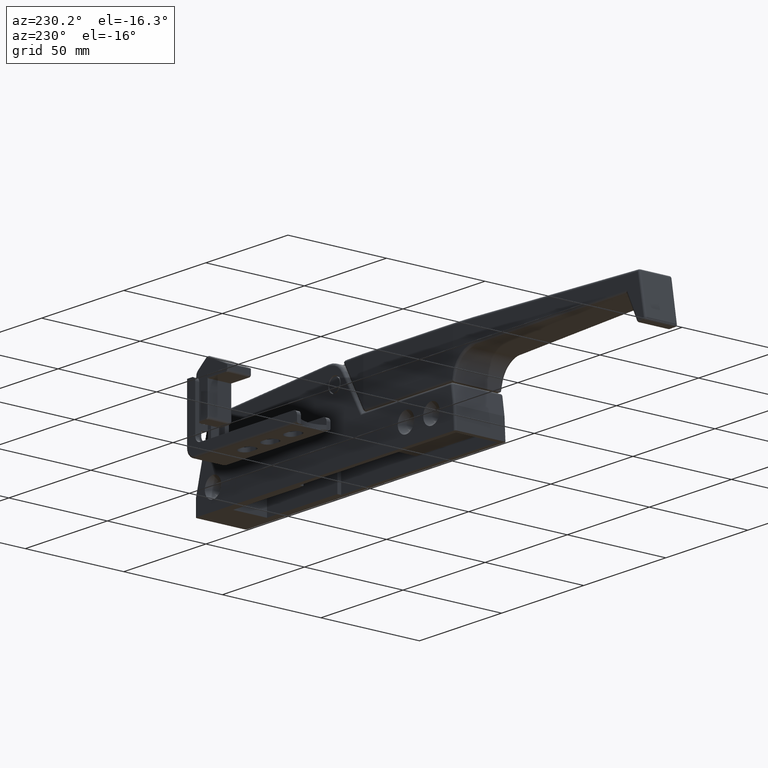
[diagram: clean part render]
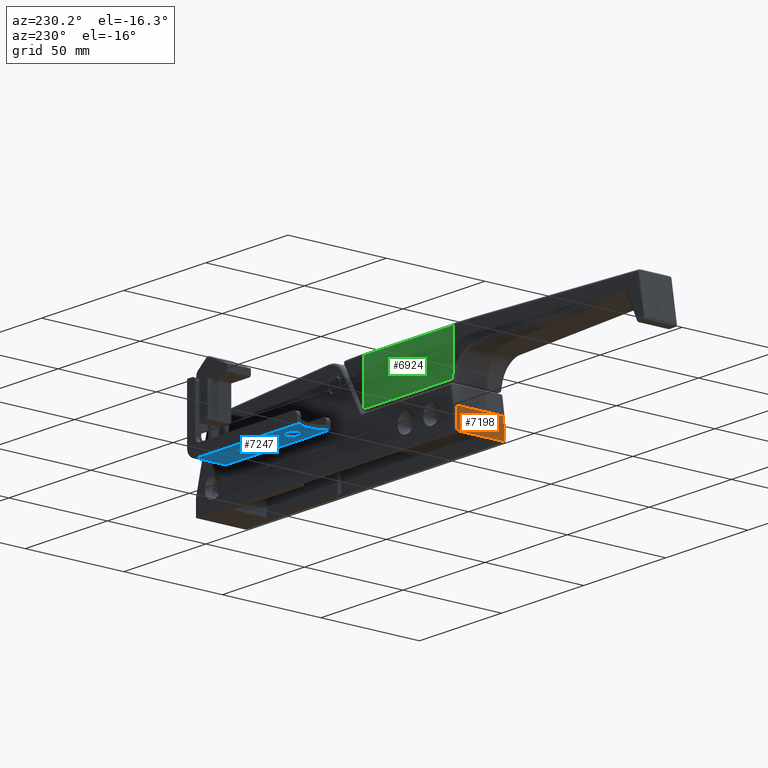
[diagram: same view with three faces highlighted in distinct colors, each labeled with its STEP entity id]
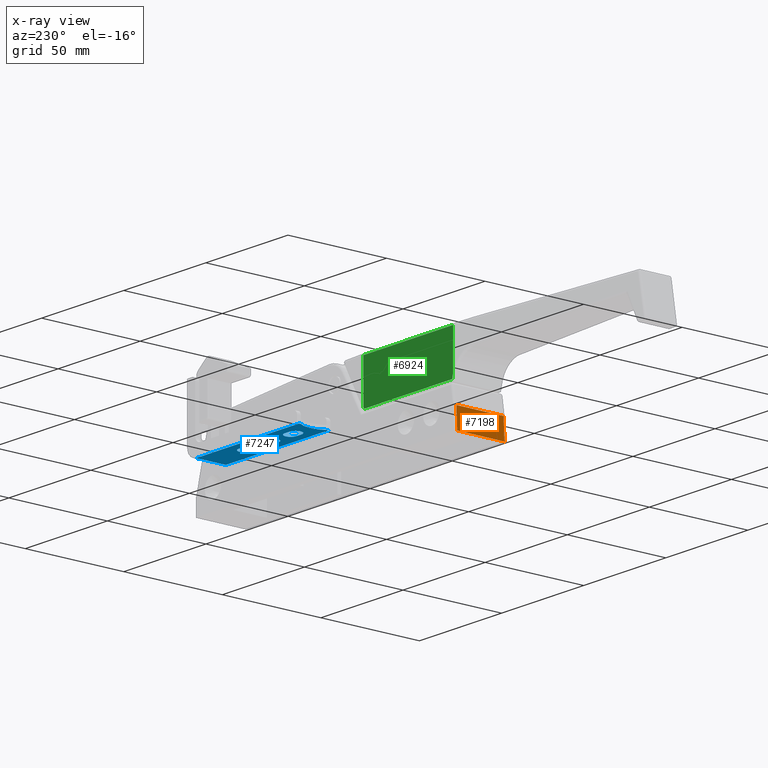
[diagram: x-ray of the same camera — body ghosted, the three highlighted faces saturated]
A machine part, auxiliary view with three faces highlighted in distinct colors.
The next image is the same camera in x-ray (body ghosted, the three faces saturated) — at least one of them is partly hidden behind the body in this view.
Their STEP definitions:

[orange] entity #7198 — the highlighted planar face has unit normal (-0.9986, -0, 0.0523).
#382=PLANE('',#7876);
#780=FACE_OUTER_BOUND('',#1246,.T.);
#1246=EDGE_LOOP('',(#6264,#6265,#6266,#6267));
#2181=LINE('',#12447,#2820);
#2182=LINE('',#12452,#2821);
#2239=LINE('',#12605,#2878);
#2240=LINE('',#12608,#2879);
#2820=VECTOR('',#9574,10.5144096329796);
#2821=VECTOR('',#9579,24.);
#2878=VECTOR('',#9744,24.);
#2879=VECTOR('',#9749,10.5144096329796);
#3476=VERTEX_POINT('',#12441);
#3477=VERTEX_POINT('',#12445);
#3479=VERTEX_POINT('',#12451);
#3521=VERTEX_POINT('',#12600);
#4387=EDGE_CURVE('',#3477,#3476,#2181,.T.);
#4389=EDGE_CURVE('',#3479,#3477,#2182,.T.);
#4466=EDGE_CURVE('',#3521,#3476,#2239,.T.);
#4467=EDGE_CURVE('',#3521,#3479,#2240,.T.);
#6264=ORIENTED_EDGE('',*,*,#4467,.T.);
#6265=ORIENTED_EDGE('',*,*,#4389,.T.);
#6266=ORIENTED_EDGE('',*,*,#4387,.T.);
#6267=ORIENTED_EDGE('',*,*,#4466,.F.);
#7198=ADVANCED_FACE('',(#780),#382,.T.);
#7876=AXIS2_PLACEMENT_3D('',#12607,#9747,#9748);
#9574=DIRECTION('',(0.998629534754574,-0.0523359562429386,0.));
#9579=DIRECTION('',(0.,0.,1.));
#9744=DIRECTION('',(0.,0.,1.));
#9747=DIRECTION('center_axis',(0.0523359562429386,0.998629534754574,0.));
#9748=DIRECTION('ref_axis',(-0.998629534754575,0.0523359562429278,0.));
#9749=DIRECTION('',(-0.998629534754574,0.0523359562429387,0.));
#12441=CARTESIAN_POINT('',(10.5,128.0497183175,12.));
#12445=CARTESIAN_POINT('',(5.720227027565E-14,128.6,12.));
#12447=CARTESIAN_POINT('',(5.919742169307E-14,128.6,12.));
#12451=CARTESIAN_POINT('',(5.720227027565E-14,128.6,-12.));
#12452=CARTESIAN_POINT('',(5.209199433547E-14,128.6,-12.));
#12600=CARTESIAN_POINT('',(10.5,128.0497183175,-12.));
#12605=CARTESIAN_POINT('',(10.5,128.0497183175,-12.));
#12607=CARTESIAN_POINT('Origin',(10.5,128.0497183175,-40.5));
#12608=CARTESIAN_POINT('',(10.5,128.0497183175,-12.));

[blue] entity #7247 — the highlighted planar face has unit normal (0, 0, -1).
#182=FACE_BOUND('',#1310,.T.);
#183=FACE_BOUND('',#1311,.T.);
#184=FACE_BOUND('',#1312,.T.);
#402=PLANE('',#7975);
#829=FACE_OUTER_BOUND('',#1309,.T.);
#1309=EDGE_LOOP('',(#6495,#6496,#6497,#6498,#6499,#6500));
#1310=EDGE_LOOP('',(#6501,#6502,#6503,#6504));
#1311=EDGE_LOOP('',(#6505,#6506,#6507,#6508));
#1312=EDGE_LOOP('',(#6509,#6510,#6511,#6512));
#1667=CIRCLE('',#7966,11.5625);
#1675=CIRCLE('',#7976,3.);
#1676=CIRCLE('',#7977,3.);
#1677=CIRCLE('',#7978,3.);
#1678=CIRCLE('',#7979,3.);
#1679=CIRCLE('',#7980,3.);
#1680=CIRCLE('',#7981,3.);
#2253=LINE('',#12683,#2892);
#2259=LINE('',#12694,#2898);
#2266=LINE('',#12727,#2905);
#2271=LINE('',#12744,#2910);
#2290=LINE('',#12789,#2929);
#2312=LINE('',#12863,#2951);
#2313=LINE('',#12866,#2952);
#2314=LINE('',#12871,#2953);
#2315=LINE('',#12874,#2954);
#2316=LINE('',#12879,#2955);
#2317=LINE('',#12882,#2956);
#2892=VECTOR('',#9846,62.5);
#2898=VECTOR('',#9854,1.);
#2905=VECTOR('',#9887,62.5);
#2910=VECTOR('',#9902,0.999999999999999);
#2929=VECTOR('',#9947,15.);
#2951=VECTOR('',#10021,2.99999999999995);
#2952=VECTOR('',#10024,2.99999999999995);
#2953=VECTOR('',#10027,2.99999999999995);
#2954=VECTOR('',#10030,2.99999999999995);
#2955=VECTOR('',#10033,2.99999999999995);
#2956=VECTOR('',#10036,2.99999999999995);
#3539=VERTEX_POINT('',#12675);
#3541=VERTEX_POINT('',#12681);
#3545=VERTEX_POINT('',#12692);
#3555=VERTEX_POINT('',#12717);
#3557=VERTEX_POINT('',#12723);
#3565=VERTEX_POINT('',#12743);
#3602=VERTEX_POINT('',#12859);
#3603=VERTEX_POINT('',#12860);
#3604=VERTEX_POINT('',#12862);
#3605=VERTEX_POINT('',#12864);
#3606=VERTEX_POINT('',#12867);
#3607=VERTEX_POINT('',#12868);
#3608=VERTEX_POINT('',#12870);
#3609=VERTEX_POINT('',#12872);
#3610=VERTEX_POINT('',#12875);
#3611=VERTEX_POINT('',#12876);
#3612=VERTEX_POINT('',#12878);
#3613=VERTEX_POINT('',#12880);
#4499=EDGE_CURVE('',#3541,#3539,#2253,.T.);
#4505=EDGE_CURVE('',#3541,#3545,#2259,.T.);
#4521=EDGE_CURVE('',#3555,#3557,#2266,.T.);
#4529=EDGE_CURVE('',#3565,#3557,#2271,.T.);
#4553=EDGE_CURVE('',#3539,#3555,#2290,.T.);
#4572=EDGE_CURVE('',#3545,#3565,#1667,.T.);
#4588=EDGE_CURVE('',#3602,#3603,#1675,.T.);
#4589=EDGE_CURVE('',#3603,#3604,#2312,.T.);
#4590=EDGE_CURVE('',#3604,#3605,#1676,.T.);
#4591=EDGE_CURVE('',#3605,#3602,#2313,.T.);
#4592=EDGE_CURVE('',#3606,#3607,#1677,.T.);
#4593=EDGE_CURVE('',#3607,#3608,#2314,.T.);
#4594=EDGE_CURVE('',#3608,#3609,#1678,.T.);
#4595=EDGE_CURVE('',#3609,#3606,#2315,.T.);
#4596=EDGE_CURVE('',#3610,#3611,#1679,.T.);
#4597=EDGE_CURVE('',#3611,#3612,#2316,.T.);
#4598=EDGE_CURVE('',#3612,#3613,#1680,.T.);
#4599=EDGE_CURVE('',#3613,#3610,#2317,.T.);
#6495=ORIENTED_EDGE('',*,*,#4499,.F.);
#6496=ORIENTED_EDGE('',*,*,#4505,.T.);
#6497=ORIENTED_EDGE('',*,*,#4572,.T.);
#6498=ORIENTED_EDGE('',*,*,#4529,.T.);
#6499=ORIENTED_EDGE('',*,*,#4521,.F.);
#6500=ORIENTED_EDGE('',*,*,#4553,.F.);
#6501=ORIENTED_EDGE('',*,*,#4588,.T.);
#6502=ORIENTED_EDGE('',*,*,#4589,.T.);
#6503=ORIENTED_EDGE('',*,*,#4590,.T.);
#6504=ORIENTED_EDGE('',*,*,#4591,.T.);
#6505=ORIENTED_EDGE('',*,*,#4592,.T.);
#6506=ORIENTED_EDGE('',*,*,#4593,.T.);
#6507=ORIENTED_EDGE('',*,*,#4594,.T.);
#6508=ORIENTED_EDGE('',*,*,#4595,.T.);
#6509=ORIENTED_EDGE('',*,*,#4596,.T.);
#6510=ORIENTED_EDGE('',*,*,#4597,.T.);
#6511=ORIENTED_EDGE('',*,*,#4598,.T.);
#6512=ORIENTED_EDGE('',*,*,#4599,.T.);
#7247=ADVANCED_FACE('',(#829,#182,#183,#184),#402,.T.);
#7966=AXIS2_PLACEMENT_3D('',#12828,#9991,#9992);
#7975=AXIS2_PLACEMENT_3D('',#12858,#10017,#10018);
#7976=AXIS2_PLACEMENT_3D('',#12861,#10019,#10020);
#7977=AXIS2_PLACEMENT_3D('',#12865,#10022,#10023);
#7978=AXIS2_PLACEMENT_3D('',#12869,#10025,#10026);
#7979=AXIS2_PLACEMENT_3D('',#12873,#10028,#10029);
#7980=AXIS2_PLACEMENT_3D('',#12877,#10031,#10032);
#7981=AXIS2_PLACEMENT_3D('',#12881,#10034,#10035);
#9846=DIRECTION('',(-1.,0.,0.));
#9854=DIRECTION('',(0.,0.,1.));
#9887=DIRECTION('',(1.,0.,0.));
#9902=DIRECTION('',(0.,0.,1.));
#9947=DIRECTION('',(0.,0.,1.));
#9991=DIRECTION('center_axis',(0.,1.,0.));
#9992=DIRECTION('ref_axis',(-0.827027027027027,0.,-0.562162162162162));
#10017=DIRECTION('center_axis',(0.,-1.,0.));
#10018=DIRECTION('ref_axis',(1.,0.,0.));
#10019=DIRECTION('center_axis',(0.,1.,0.));
#10020=DIRECTION('ref_axis',(0.,0.,-1.));
#10021=DIRECTION('',(1.,0.,0.));
#10022=DIRECTION('center_axis',(0.,1.,0.));
#10023=DIRECTION('ref_axis',(0.,0.,1.));
#10024=DIRECTION('',(-1.,0.,0.));
#10025=DIRECTION('center_axis',(0.,1.,0.));
#10026=DIRECTION('ref_axis',(0.,0.,-1.));
#10027=DIRECTION('',(1.,0.,0.));
#10028=DIRECTION('center_axis',(0.,1.,0.));
#10029=DIRECTION('ref_axis',(0.,0.,1.));
#10030=DIRECTION('',(-1.,0.,-3.70074341541725E-16));
#10031=DIRECTION('center_axis',(0.,1.,0.));
#10032=DIRECTION('ref_axis',(0.,0.,-1.));
#10033=DIRECTION('',(1.,0.,0.));
#10034=DIRECTION('center_axis',(0.,1.,0.));
#10035=DIRECTION('ref_axis',(0.,0.,1.));
#10036=DIRECTION('',(-1.,0.,-3.70074341541725E-16));
#12675=CARTESIAN_POINT('',(5.,0.,1.));
#12681=CARTESIAN_POINT('',(67.5,0.,1.));
#12683=CARTESIAN_POINT('',(12.6559452736318,0.,1.));
#12692=CARTESIAN_POINT('',(67.5,0.,2.));
#12694=CARTESIAN_POINT('',(67.5,0.,0.));
#12717=CARTESIAN_POINT('',(5.,0.,16.));
#12723=CARTESIAN_POINT('',(67.5,0.,16.));
#12727=CARTESIAN_POINT('',(12.6559452736318,0.,16.));
#12743=CARTESIAN_POINT('',(67.5,0.,15.));
#12744=CARTESIAN_POINT('',(67.5,0.,0.));
#12789=CARTESIAN_POINT('',(5.,0.,0.));
#12828=CARTESIAN_POINT('Origin',(77.0625,0.,8.5));
#12858=CARTESIAN_POINT('Origin',(0.,0.,0.));
#12859=CARTESIAN_POINT('',(53.5,0.,5.5));
#12860=CARTESIAN_POINT('',(53.5,0.,11.5));
#12861=CARTESIAN_POINT('Origin',(53.5,0.,8.5));
#12862=CARTESIAN_POINT('',(56.5,0.,11.5));
#12863=CARTESIAN_POINT('',(26.75,0.,11.5));
#12864=CARTESIAN_POINT('',(56.5,0.,5.5));
#12865=CARTESIAN_POINT('Origin',(56.5,0.,8.5));
#12866=CARTESIAN_POINT('',(28.25,0.,5.5));
#12867=CARTESIAN_POINT('',(25.5,0.,5.5));
#12868=CARTESIAN_POINT('',(25.5,0.,11.5));
#12869=CARTESIAN_POINT('Origin',(25.5,0.,8.5));
#12870=CARTESIAN_POINT('',(28.5,0.,11.5));
#12871=CARTESIAN_POINT('',(12.75,0.,11.5));
#12872=CARTESIAN_POINT('',(28.5,0.,5.5));
#12873=CARTESIAN_POINT('Origin',(28.5,0.,8.5));
#12874=CARTESIAN_POINT('',(14.25,0.,5.5));
#12875=CARTESIAN_POINT('',(39.5,0.,5.5));
#12876=CARTESIAN_POINT('',(39.5,0.,11.5));
#12877=CARTESIAN_POINT('Origin',(39.5,0.,8.5));
#12878=CARTESIAN_POINT('',(42.5,0.,11.5));
#12879=CARTESIAN_POINT('',(19.75,0.,11.5));
#12880=CARTESIAN_POINT('',(42.5,0.,5.5));
#12881=CARTESIAN_POINT('Origin',(42.5,0.,8.5));
#12882=CARTESIAN_POINT('',(21.25,0.,5.49999999999999));

[green] entity #6924 — the highlighted planar face has unit normal (-0, 1, 0).
#212=PLANE('',#7435);
#506=FACE_OUTER_BOUND('',#944,.T.);
#944=EDGE_LOOP('',(#4981,#4982,#4983,#4984,#4985,#4986,#4987,#4988));
#1501=CIRCLE('',#7436,0.6);
#1772=LINE('',#10526,#2411);
#1808=LINE('',#10836,#2447);
#1811=LINE('',#10854,#2450);
#1812=LINE('',#10870,#2451);
#1813=LINE('',#10874,#2452);
#2411=VECTOR('',#8271,54.7400468551019);
#2447=VECTOR('',#8419,0.750260074062678);
#2450=VECTOR('',#8434,20.9490805562527);
#2451=VECTOR('',#8439,19.207095707403);
#2452=VECTOR('',#8442,53.35691806902);
#3005=B_SPLINE_CURVE_WITH_KNOTS('',3,(#10859,#10860,#10861,#10862,#10863,
#10864,#10865,#10866,#10867,#10868,#10869),.UNSPECIFIED.,.F.,.F.,(4,1,1,
1,1,1,1,1,4),(0.,0.125,0.25,0.375,0.5,0.625,0.75,0.875,1.),
 .UNSPECIFIED.);
#3006=B_SPLINE_CURVE_WITH_KNOTS('',3,(#10875,#10876,#10877,#10878,#10879,
#10880,#10881,#10882,#10883,#10884,#10885,#10886,#10887,#10888,#10889,#10890,
#10891,#10892,#10893,#10894,#10895,#10896),.UNSPECIFIED.,.F.,.F.,(4,3,3,
3,3,3,3,4),(0.,0.1428571428571,0.2857142857143,0.4285714285714,0.5714285714286,
0.7142857142857,0.8571428571429,1.),.UNSPECIFIED.);
#3113=VERTEX_POINT('',#10521);
#3114=VERTEX_POINT('',#10525);
#3153=VERTEX_POINT('',#10833);
#3154=VERTEX_POINT('',#10835);
#3157=VERTEX_POINT('',#10857);
#3158=VERTEX_POINT('',#10858);
#3159=VERTEX_POINT('',#10871);
#3160=VERTEX_POINT('',#10873);
#3769=EDGE_CURVE('',#3113,#3114,#1772,.T.);
#3841=EDGE_CURVE('',#3153,#3154,#1808,.T.);
#3848=EDGE_CURVE('',#3154,#3113,#1811,.T.);
#3849=EDGE_CURVE('',#3157,#3158,#3005,.T.);
#3850=EDGE_CURVE('',#3114,#3158,#1812,.T.);
#3851=EDGE_CURVE('',#3159,#3153,#1501,.T.);
#3852=EDGE_CURVE('',#3160,#3159,#1813,.T.);
#3853=EDGE_CURVE('',#3160,#3157,#3006,.T.);
#4981=ORIENTED_EDGE('',*,*,#3849,.T.);
#4982=ORIENTED_EDGE('',*,*,#3850,.F.);
#4983=ORIENTED_EDGE('',*,*,#3769,.F.);
#4984=ORIENTED_EDGE('',*,*,#3848,.F.);
#4985=ORIENTED_EDGE('',*,*,#3841,.F.);
#4986=ORIENTED_EDGE('',*,*,#3851,.F.);
#4987=ORIENTED_EDGE('',*,*,#3852,.F.);
#4988=ORIENTED_EDGE('',*,*,#3853,.T.);
#6924=ADVANCED_FACE('',(#506),#212,.T.);
#7435=AXIS2_PLACEMENT_3D('',#10856,#8437,#8438);
#7436=AXIS2_PLACEMENT_3D('',#10872,#8440,#8441);
#8271=DIRECTION('',(-6.46257121095496E-13,0.999999999999994,-1.07978527843399E-7));
#8419=DIRECTION('',(0.,-0.500000000000017,-0.866025403784429));
#8434=DIRECTION('',(1.68867322919097E-12,-2.01807923521396E-7,-0.99999999999998));
#8437=DIRECTION('center_axis',(-1.,0.,0.));
#8438=DIRECTION('ref_axis',(0.,-1.,0.));
#8439=DIRECTION('',(3.686352404955E-9,-1.332633703125E-10,1.));
#8440=DIRECTION('center_axis',(1.,0.,0.));
#8441=DIRECTION('ref_axis',(0.,0.,1.));
#8442=DIRECTION('',(0.,-1.,0.));
#10521=CARTESIAN_POINT('',(-12.318181818162,16.7599531448981,-8.2988248392325));
#10525=CARTESIAN_POINT('',(-12.31818181818,71.5,-8.298827761423));
#10526=CARTESIAN_POINT('',(-12.31818181815,16.75995102895,-8.298821850673));
#10833=CARTESIAN_POINT('',(-12.31818181818,17.13508529611,13.3));
#10835=CARTESIAN_POINT('',(-12.31818181818,16.759955258033,12.6502557170202));
#10836=CARTESIAN_POINT('',(-12.31818181818,17.13508529611,13.3));
#10854=CARTESIAN_POINT('',(-12.31818181818,16.75995525664,12.6502557122));
#10856=CARTESIAN_POINT('Origin',(-12.31818181818,71.5,-57.5));
#10857=CARTESIAN_POINT('',(-12.318181816992,71.4724277135012,11.1882180778155));
#10858=CARTESIAN_POINT('',(-12.3181817473786,71.4999999974401,10.90826794598));
#10859=CARTESIAN_POINT('Ctrl Pts',(-12.3181818176,71.4724277135,11.18821807781));
#10860=CARTESIAN_POINT('Ctrl Pts',(-12.3181818176,71.47421080151,11.17523637015));
#10861=CARTESIAN_POINT('Ctrl Pts',(-12.31818181846,71.47765436414,11.14975146739));
#10862=CARTESIAN_POINT('Ctrl Pts',(-12.31818181806,71.48240150123,11.11313446564));
#10863=CARTESIAN_POINT('Ctrl Pts',(-12.31818181837,71.48676554341,11.07758742622));
#10864=CARTESIAN_POINT('Ctrl Pts',(-12.31818181754,71.49072023724,11.04288534206));
#10865=CARTESIAN_POINT('Ctrl Pts',(-12.31818182054,71.49421078564,11.00882292877));
#10866=CARTESIAN_POINT('Ctrl Pts',(-12.31818180938,71.49713584025,10.97517741329));
#10867=CARTESIAN_POINT('Ctrl Pts',(-12.31818185104,71.49928815509,10.94198544618));
#10868=CARTESIAN_POINT('Ctrl Pts',(-12.31818174738,71.50000041312,10.91952752286));
#10869=CARTESIAN_POINT('Ctrl Pts',(-12.31818174738,71.49999999744,10.90826794598));
#10870=CARTESIAN_POINT('',(-12.31818181818,71.5,-8.298827761423));
#10871=CARTESIAN_POINT('',(-12.31818181818,17.65470053838,13.6));
#10872=CARTESIAN_POINT('Origin',(-12.31818181818,17.65470053838,13.));
#10873=CARTESIAN_POINT('',(-12.31818181818,71.0116186074,13.6));
#10874=CARTESIAN_POINT('',(-12.31818181818,71.0116186074,13.6));
#10875=CARTESIAN_POINT('Ctrl Pts',(-12.3181818181659,71.0116186073969,13.599999999999));
#10876=CARTESIAN_POINT('Ctrl Pts',(-12.3181818181676,71.0417734350774,13.4569009578591));
#10877=CARTESIAN_POINT('Ctrl Pts',(-12.3181818693749,71.0707696235121,13.3181853687822));
#10878=CARTESIAN_POINT('Ctrl Pts',(-12.3181818181684,71.0985658774776,13.1839982088738));
#10879=CARTESIAN_POINT('Ctrl Pts',(-12.3181817669619,71.1263621314432,13.0498110489651));
#10880=CARTESIAN_POINT('Ctrl Pts',(-12.3181818142064,71.1529584920598,12.9201523267468));
#10881=CARTESIAN_POINT('Ctrl Pts',(-12.3181818181694,71.1784278959698,12.7945763764481));
#10882=CARTESIAN_POINT('Ctrl Pts',(-12.3181818221325,71.2038972998797,12.6690004261497));
#10883=CARTESIAN_POINT('Ctrl Pts',(-12.3181818352808,71.2282397574658,12.547507249906));
#10884=CARTESIAN_POINT('Ctrl Pts',(-12.3181818181708,71.2514640661913,12.4298785232591));
#10885=CARTESIAN_POINT('Ctrl Pts',(-12.3181818010608,71.2746883749168,12.3122497966123));
#10886=CARTESIAN_POINT('Ctrl Pts',(-12.318181946558,71.2967945646021,12.1984855253118));
#10887=CARTESIAN_POINT('Ctrl Pts',(-12.3181818181723,71.317767484792,12.0883554321213));
#10888=CARTESIAN_POINT('Ctrl Pts',(-12.3181816897867,71.3387404049818,11.9782253389308));
#10889=CARTESIAN_POINT('Ctrl Pts',(-12.3181817455209,71.3585801255318,11.8717294372635));
#10890=CARTESIAN_POINT('Ctrl Pts',(-12.318181818174,71.3772011511107,11.7686826280328));
#10891=CARTESIAN_POINT('Ctrl Pts',(-12.3181818908271,71.3958221766897,11.6656358188018));
#10892=CARTESIAN_POINT('Ctrl Pts',(-12.3181832837434,71.4132246442851,11.5660381246247));
#10893=CARTESIAN_POINT('Ctrl Pts',(-12.318181818176,71.4292595012846,11.4693721055974));
#10894=CARTESIAN_POINT('Ctrl Pts',(-12.3181803526087,71.4452943582841,11.3727060865702));
#10895=CARTESIAN_POINT('Ctrl Pts',(-12.3181818164419,71.4599622158955,11.2789718438601));
#10896=CARTESIAN_POINT('Ctrl Pts',(-12.3181818164418,71.472427713407,11.1882180778031));